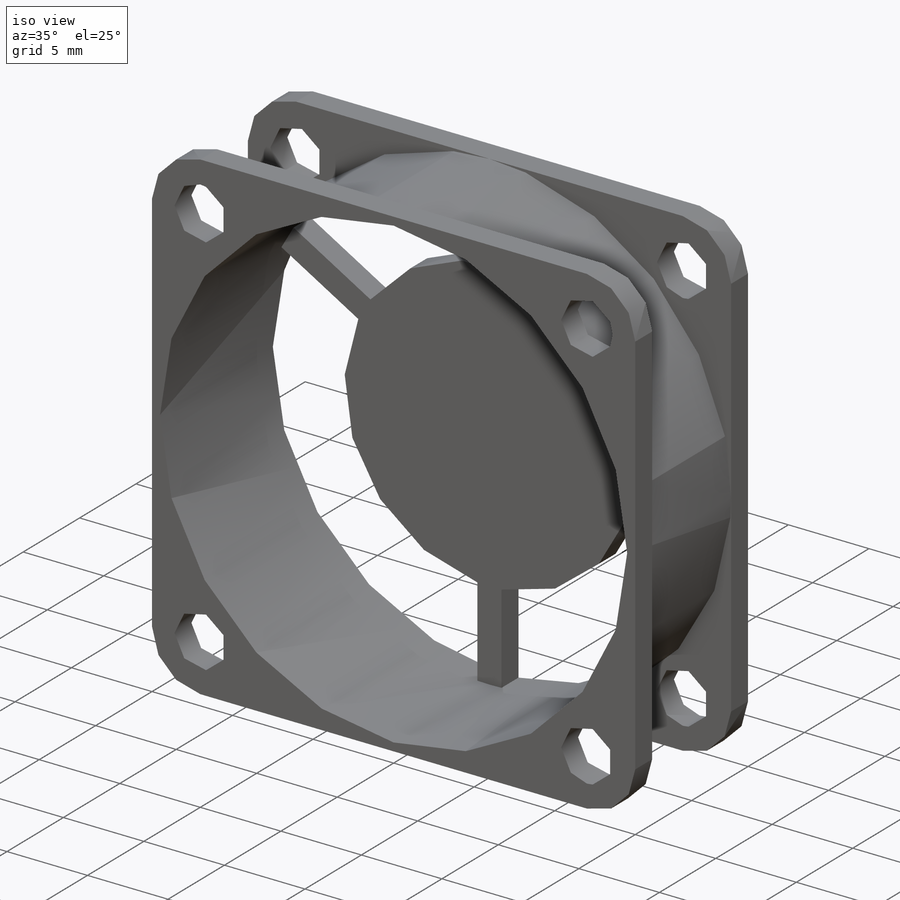
[diagram: iso view]
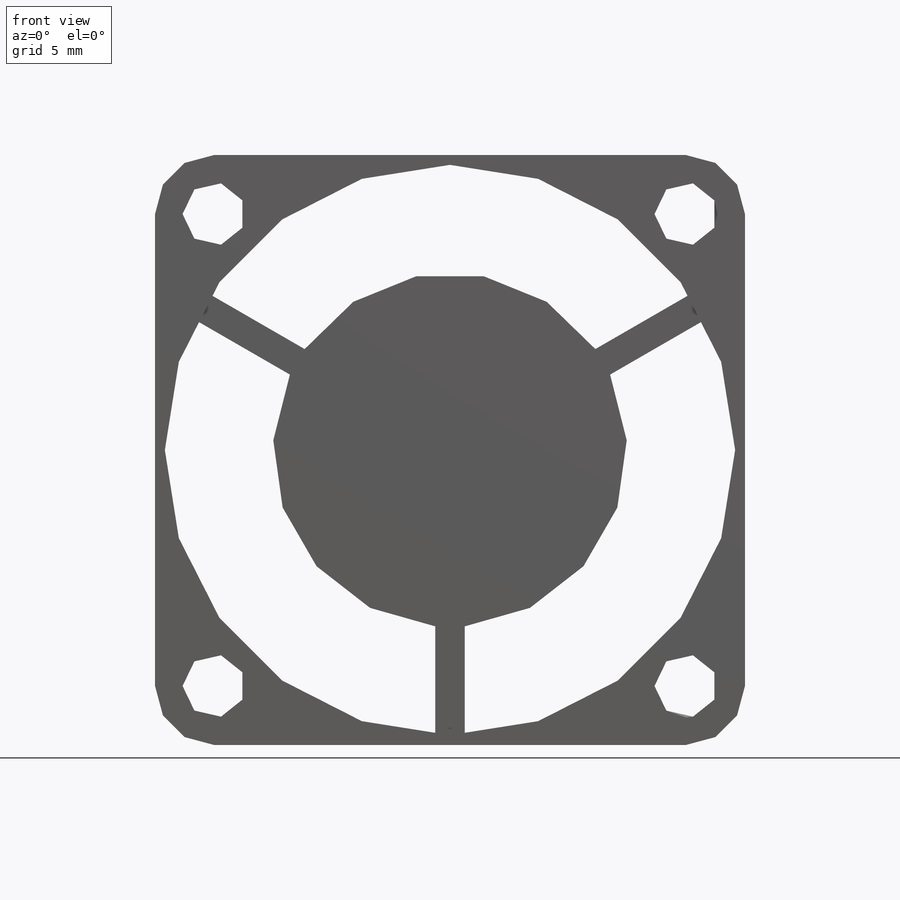
[diagram: front view]
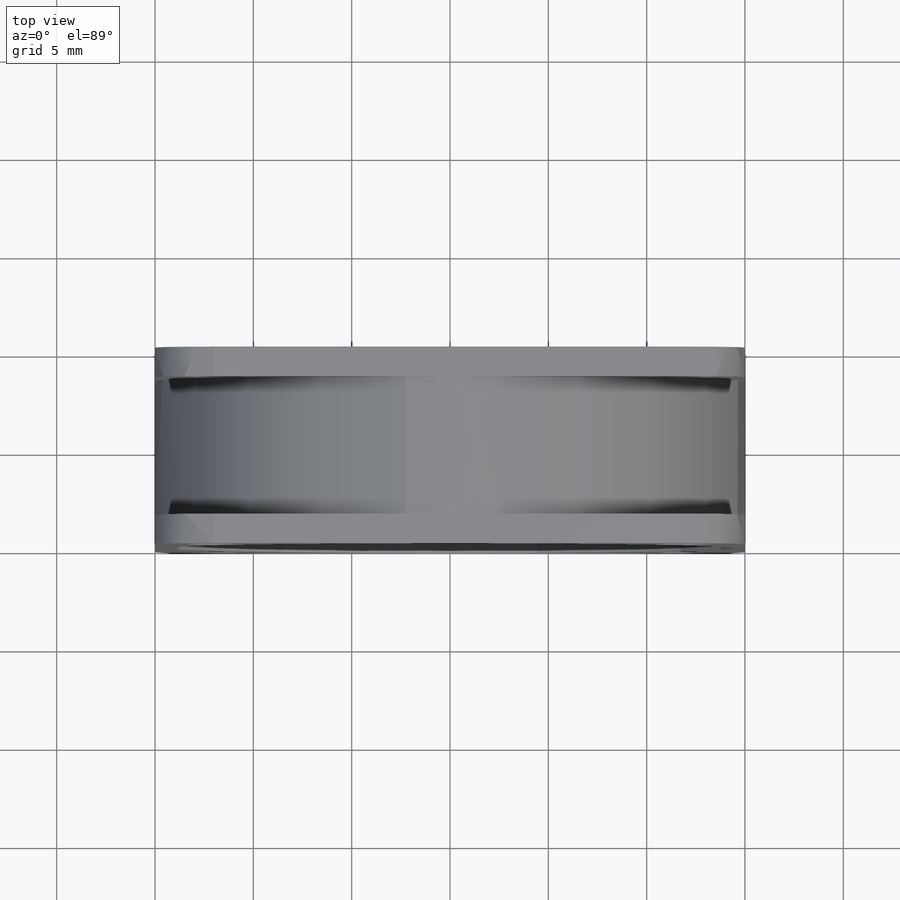
[diagram: top view]
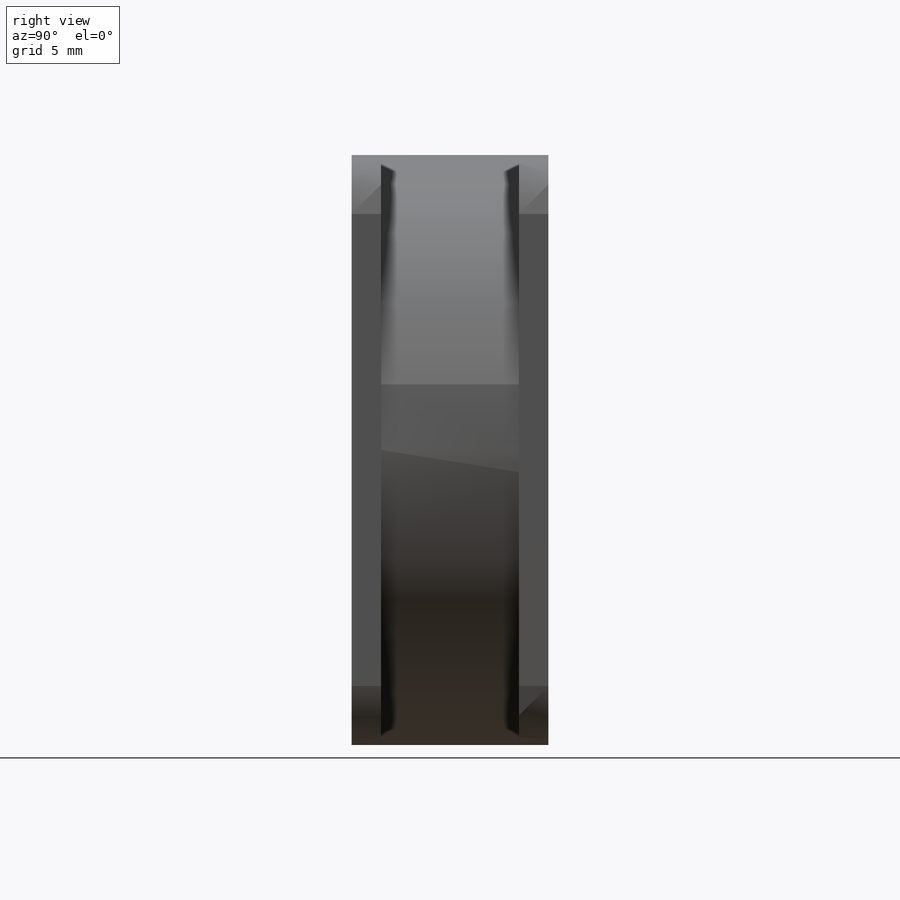
[diagram: right view]
SOLIDWORKS PART (.sldprt)
format: sldprt  version: not decoded by parser v0  size: 416,768 bytes
history: native  units: mm
features: sketch x13, pattern_circular x4, extrude x2, cut_extrude x2, material x1, plane x1, cut_revolve x1, hole x1 + 1 further entry (+14 scaffold rows collapsed)
feature tree (40):
  scaffold x14  (default folders/planes/origin — collapsed)
  material  "Material <not specified>"
  "Design Table"
  sketch  "Support-Front"  dims[c1.Diam-Fixing-Hole=3.2mm c1.Diam-Fan-Hole=29.0mm c1.Diam-Fixing-Plate-Fan=18.0mm c1.D1=80.0mm c1.D3=71.0mm c1.Width=80.0mm c1.Dist-Fixing-Hole=24.0mm c2.Width=30.0mm c2.Height=80.0mm]
  sketch  "Support-Right"  dims[Thickness=10.0mm D2=~3.598927mm]
  sketch  "Support-Front-Reinforcment-Place"  dims[c1.D1=~9.63791mm c2.D1=20.0deg c2.D2=~45.149642mm c3.D2=35.0deg]
  sketch  "Support-Front-Reinforcment-Strip"
  sketch  "Support-Front-Bone"  dims[c1.D1=~32.034605mm c1.D2=40.0mm c2.D2=90.0deg c3.D2=40.0mm c4.D2=120.0deg c5.D2=40.0mm c5.Angle-Bone=180.0deg c5.D3=~15.412021mm c6.D3=115.0deg c7.D3=~7.269995mm c7.D1=23.1mm c7.Angle-Place-Bone=75.0deg c8.D1=40.0mm c8.Angle-Place-Bone=180.0deg]
  plane  "Plane1"
  sketch  "Sketch-Body"  dims[D1=0.0mm]
  extrude  "Body"  [1 undecoded]
  sketch  "Sketch-Cut-Body"
  cut_revolve  "Cut-Body"  Angle=360deg
  sketch  "Sketch-Reinforcment-Place"
  extrude  "Reinforcment-Place"  [1 undecoded]
  pattern_circular  "CirPattern-Reinforcment-Place"  Count=1 Angle=360deg Num-Reinforcment-Place=1
  sketch  "Sketch-Reinforcment-Strip"
  pattern_circular  "Reinforcment-Strip"  Angle=360deg Num-Reinforcment-Strip=0mm  [1 undecoded]
  sketch  "Sketch-Fixing-Hole"
  cut_extrude  "Fixing-Hole"  [1 undecoded]
  hole  "CirPattern-Fixing-Hole"  [1 undecoded]
  sketch  "Sketch-Bone"
  pattern_circular  "Bone"  Angle=360deg Num-Bone=0mm  [1 undecoded]
  sketch  "Sketch-Fixing-Plate-Fan"
  pattern_circular  "Fixing-Plate-Fan"  [2 undecoded]
  sketch  "Sketch1"  dims[D1=15.0mm]
  cut_extrude  "Cut-Extrude1"  [1 undecoded]
decode coverage: 10 of 23 modeling features carry decoded parameters; 1 rows unclassified (native names shown)
note: ~ marks probable driven/reference dimensions
note: 9 parameter values undecoded
summary: no parameter record found for 5 features
note: suppression state not decoded; provenance and decode notes live in map.json
